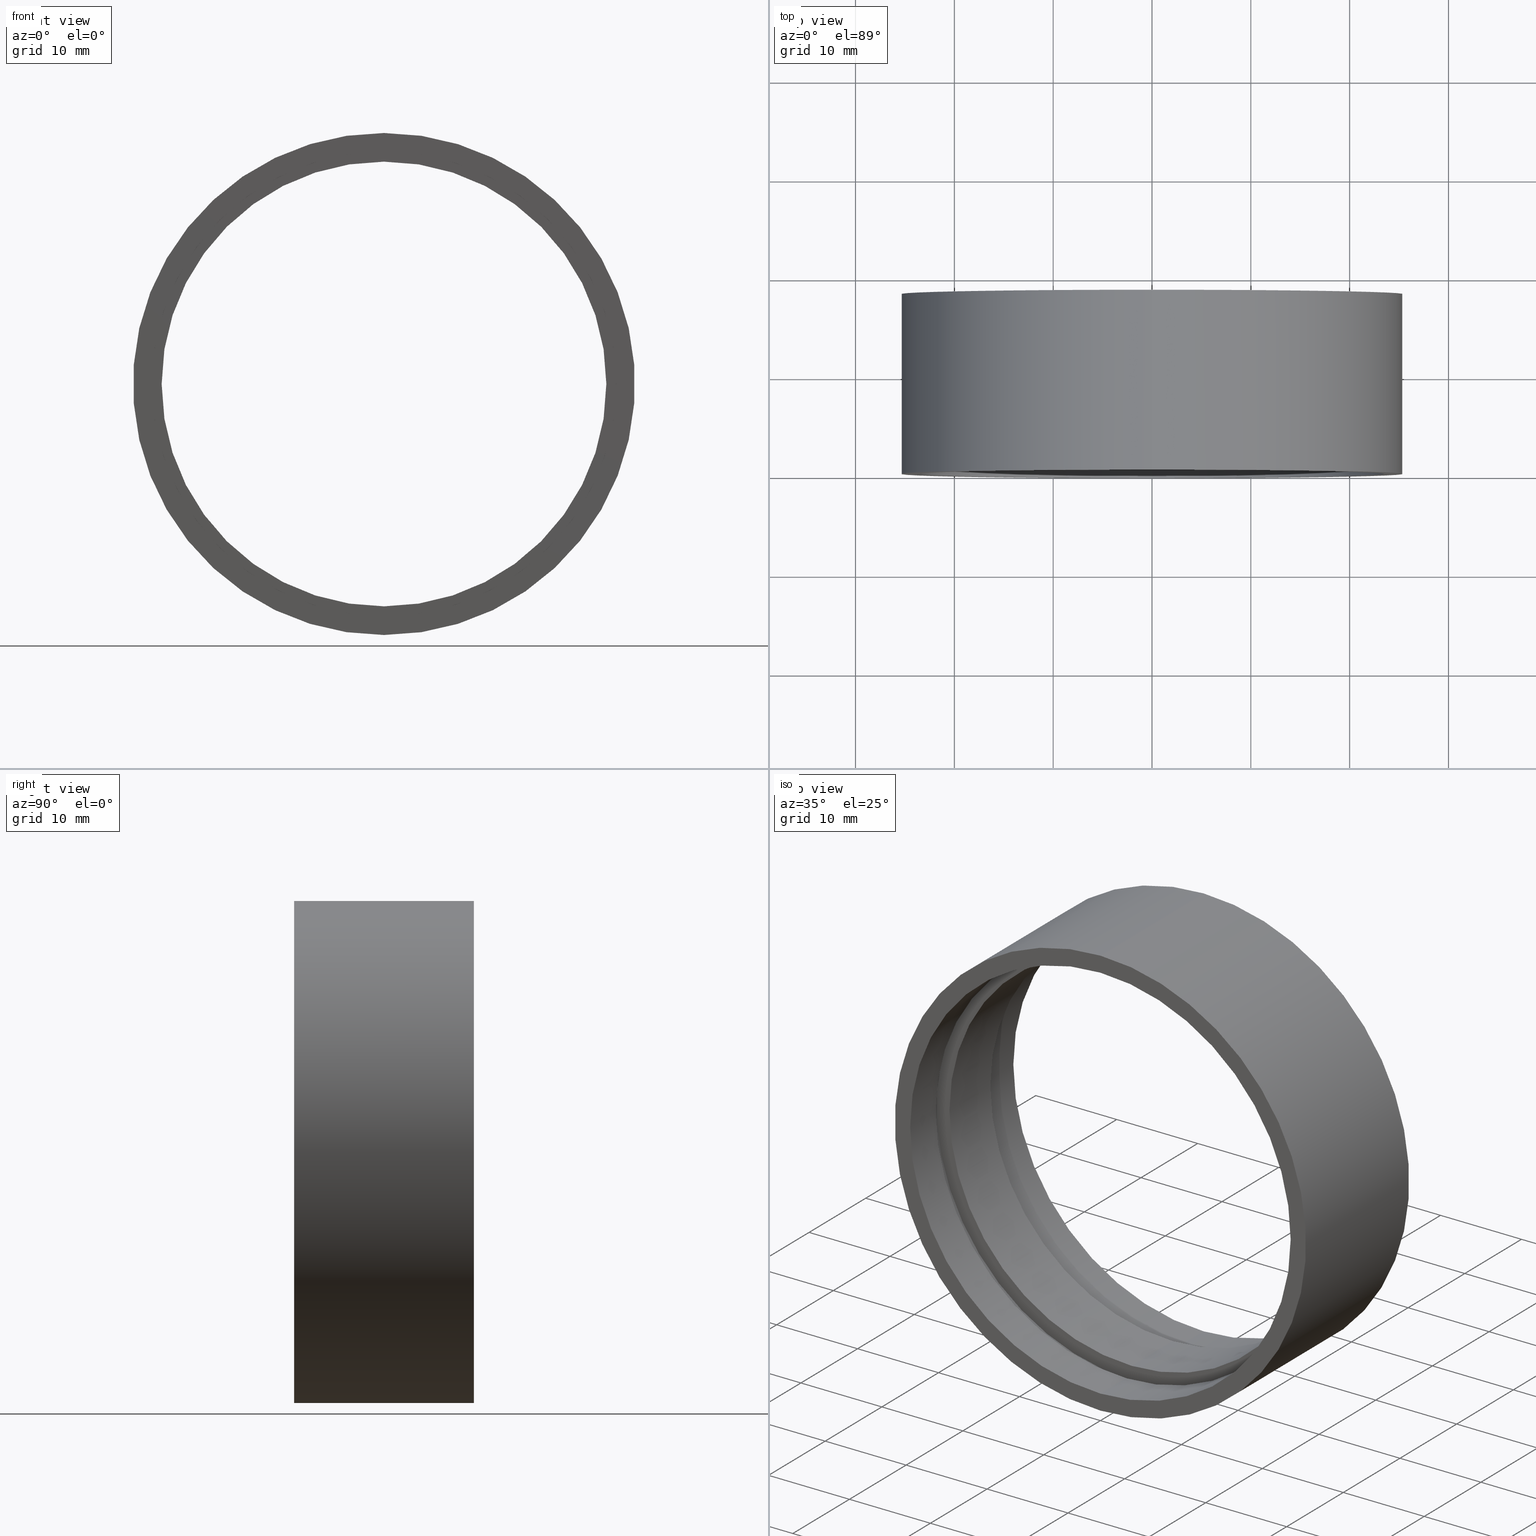
[diagram: canonical four-view strip — front | top / right | iso, engineering-drawing reading convention]
A machine part, canonical four-view strip (front | top / right | iso — engineering-drawing reading convention). The complete STEP part file that produces these views, byte-faithful:
ISO-10303-21;
HEADER;
FILE_DESCRIPTION (( 'STEP AP214' ),
    '1' );
FILE_NAME ('503021.STEP',
    '2019-09-06T02:09:03',
    ( '' ),
    ( '' ),
    'SwSTEP 2.0',
    'SolidWorks 2016',
    '' );
FILE_SCHEMA (( 'AUTOMOTIVE_DESIGN' ));
ENDSEC;

DATA;
#1 = EDGE_LOOP ( 'NONE', ( #368, #516, #393, #479 ) ) ;
#2 = FACE_OUTER_BOUND ( 'NONE', #542, .T. ) ;
#3 = FACE_OUTER_BOUND ( 'NONE', #530, .T. ) ;
#4 = ORIENTED_EDGE ( 'NONE', *, *, #426, .F. ) ;
#5 = VERTEX_POINT ( 'NONE', #578 ) ;
#6 = EDGE_CURVE ( 'NONE', #151, #606, #517, .T. ) ;
#7 = DIRECTION ( 'NONE',  ( 0.0000000000000000000, 0.0000000000000000000, 1.000000000000000000 ) ) ;
#8 = CYLINDRICAL_SURFACE ( 'NONE', #192, 22.50000000000001800 ) ;
#9 = CYLINDRICAL_SURFACE ( 'NONE', #438, 23.50000000000002100 ) ;
#10 = APPLICATION_PROTOCOL_DEFINITION ( 'draft international standard', 'automotive_design', 1998, #487 ) ;
#11 = DIRECTION ( 'NONE',  ( 0.0000000000000000000, -1.000000000000000000, 0.0000000000000000000 ) ) ;
#12 = VERTEX_POINT ( 'NONE', #53 ) ;
#13 = VERTEX_POINT ( 'NONE', #395 ) ;
#14 =( NAMED_UNIT ( * ) PLANE_ANGLE_UNIT ( ) SI_UNIT ( $, .RADIAN. ) );
#15 = CARTESIAN_POINT ( 'NONE',  ( 0.0000000000000000000, 161.3761669434274500, 0.0000000000000000000 ) ) ;
#16 = AXIS2_PLACEMENT_3D ( 'NONE', #26, #493, #316 ) ;
#17 = FILL_AREA_STYLE_COLOUR ( '', #412 ) ;
#18 = CARTESIAN_POINT ( 'NONE',  ( 3.110602869834279600E-015, 18.19999999999996700, -25.40000000000002300 ) ) ;
#19 = ORIENTED_EDGE ( 'NONE', *, *, #149, .F. ) ;
#20 = COLOUR_RGB ( '',1.000000000000000000, 1.000000000000000000, 1.000000000000000000 ) ;
#21 = MECHANICAL_DESIGN_GEOMETRIC_PRESENTATION_REPRESENTATION (  '', ( #607 ), #52 ) ;
#22 =( LENGTH_UNIT ( ) NAMED_UNIT ( * ) SI_UNIT ( .MILLI., .METRE. ) );
#23 = DIRECTION ( 'NONE',  ( 0.0000000000000000000, 0.0000000000000000000, 1.000000000000000000 ) ) ;
#24 = DIRECTION ( 'NONE',  ( -0.0000000000000000000, 1.000000000000000000, -0.0000000000000000000 ) ) ;
#25 = EDGE_LOOP ( 'NONE', ( #536, #164, #471, #154 ) ) ;
#26 = CARTESIAN_POINT ( 'NONE',  ( 0.0000000000000000000, 161.3761669434274500, 0.0000000000000000000 ) ) ;
#27 = DIRECTION ( 'NONE',  ( -0.0000000000000000000, 1.000000000000000000, 0.0000000000000000000 ) ) ;
#28 = APPLICATION_CONTEXT ( 'automotive_design' ) ;
#29 = CARTESIAN_POINT ( 'NONE',  ( 0.0000000000000000000, 4.499999999999976000, 24.10000000000001900 ) ) ;
#30 = EDGE_CURVE ( 'NONE', #198, #12, #282, .T. ) ;
#31 = DIRECTION ( 'NONE',  ( -0.0000000000000000000, 1.000000000000000000, -0.0000000000000000000 ) ) ;
#32 = AXIS2_PLACEMENT_3D ( 'NONE', #126, #176, #69 ) ;
#33 = ORIENTED_EDGE ( 'NONE', *, *, #302, .T. ) ;
#34 = ORIENTED_EDGE ( 'NONE', *, *, #426, .T. ) ;
#35 = EDGE_LOOP ( 'NONE', ( #127, #329, #246, #582 ) ) ;
#36 = SURFACE_STYLE_FILL_AREA ( #64 ) ;
#37 = VECTOR ( 'NONE', #422, 1000.000000000000000 ) ;
#38 = VECTOR ( 'NONE', #504, 1000.000000000000000 ) ;
#39 = ADVANCED_FACE ( 'NONE', ( #220, #2 ), #106, .F. ) ;
#40 = CARTESIAN_POINT ( 'NONE',  ( 0.0000000000000000000, 161.3761669434274500, 0.0000000000000000000 ) ) ;
#41 = AXIS2_PLACEMENT_3D ( 'NONE', #451, #62, #67 ) ;
#42 = ADVANCED_FACE ( 'NONE', ( #170 ), #296, .T. ) ;
#43 = FILL_AREA_STYLE_COLOUR ( '', #20 ) ;
#44 = VECTOR ( 'NONE', #480, 1000.000000000000000 ) ;
#45 = EDGE_CURVE ( 'NONE', #153, #569, #543, .T. ) ;
#46 = CARTESIAN_POINT ( 'NONE',  ( 2.877919977996282700E-015, -2.775557561562891400E-014, -23.50000000000002100 ) ) ;
#47 = EDGE_LOOP ( 'NONE', ( #169, #466, #472, #99 ) ) ;
#48 = EDGE_LOOP ( 'NONE', ( #181, #96 ) ) ;
#49 = COLOUR_RGB ( '',1.000000000000000000, 1.000000000000000000, 1.000000000000000000 ) ;
#50 = AXIS2_PLACEMENT_3D ( 'NONE', #325, #27, #369 ) ;
#51 = EDGE_LOOP ( 'NONE', ( #341, #257, #60, #292 ) ) ;
#52 =( GEOMETRIC_REPRESENTATION_CONTEXT ( 3 ) GLOBAL_UNCERTAINTY_ASSIGNED_CONTEXT ( ( #299 ) ) GLOBAL_UNIT_ASSIGNED_CONTEXT ( ( #603, #502, #326 ) ) REPRESENTATION_CONTEXT ( 'NONE', 'WORKASPACE' ) );
#53 = CARTESIAN_POINT ( 'NONE',  ( 0.0000000000000000000, 18.19999999999996700, 23.50000000000002100 ) ) ;
#54 = AXIS2_PLACEMENT_3D ( 'NONE', #40, #380, #389 ) ;
#55 = EDGE_LOOP ( 'NONE', ( #105, #307 ) ) ;
#56 = UNCERTAINTY_MEASURE_WITH_UNIT (LENGTH_MEASURE( 1.000000000000000100E-005 ), #496, 'distance_accuracy_value', 'NONE');
#57 = CARTESIAN_POINT ( 'NONE',  ( 0.0000000000000000000, 161.3761669434274500, 23.50000000000002100 ) ) ;
#58 = FACE_BOUND ( 'NONE', #213, .T. ) ;
#59 = VECTOR ( 'NONE', #217, 1000.000000000000000 ) ;
#60 = ORIENTED_EDGE ( 'NONE', *, *, #568, .T. ) ;
#61 = EDGE_CURVE ( 'NONE', #465, #135, #593, .T. ) ;
#62 = DIRECTION ( 'NONE',  ( -0.0000000000000000000, 1.000000000000000000, -0.0000000000000000000 ) ) ;
#63 = MECHANICAL_DESIGN_GEOMETRIC_PRESENTATION_REPRESENTATION (  '', ( #118 ), #233 ) ;
#64 = FILL_AREA_STYLE ('',( #585 ) ) ;
#65 = EDGE_LOOP ( 'NONE', ( #227, #81, #441, #411 ) ) ;
#66 = DIRECTION ( 'NONE',  ( -0.0000000000000000000, 1.000000000000000000, -0.0000000000000000000 ) ) ;
#67 = DIRECTION ( 'NONE',  ( 0.0000000000000000000, 0.0000000000000000000, 1.000000000000000000 ) ) ;
#68 = CIRCLE ( 'NONE', #209, 23.50000000000002100 ) ;
#69 = DIRECTION ( 'NONE',  ( 0.0000000000000000000, 0.0000000000000000000, 1.000000000000000000 ) ) ;
#70 = CARTESIAN_POINT ( 'NONE',  ( 0.0000000000000000000, 4.499999999999976000, 0.0000000000000000000 ) ) ;
#71 = DIRECTION ( 'NONE',  ( 0.0000000000000000000, 0.0000000000000000000, 1.000000000000000000 ) ) ;
#72 = FACE_OUTER_BOUND ( 'NONE', #452, .T. ) ;
#73 = PRESENTATION_STYLE_ASSIGNMENT (( #97 ) ) ;
#74 = AXIS2_PLACEMENT_3D ( 'NONE', #535, #587, #355 ) ;
#75 = CARTESIAN_POINT ( 'NONE',  ( 0.0000000000000000000, 161.3761669434274500, 0.0000000000000000000 ) ) ;
#76 = CARTESIAN_POINT ( 'NONE',  ( 2.877919977996282700E-015, 161.3761669434274500, -23.50000000000002100 ) ) ;
#77 = FILL_AREA_STYLE_COLOUR ( '', #234 ) ;
#78 = ORIENTED_EDGE ( 'NONE', *, *, #240, .T. ) ;
#79 = ORIENTED_EDGE ( 'NONE', *, *, #45, .T. ) ;
#80 = SURFACE_STYLE_USAGE ( .BOTH. , #600 ) ;
#81 = ORIENTED_EDGE ( 'NONE', *, *, #280, .F. ) ;
#82 = LINE ( 'NONE', #489, #579 ) ;
#83 = CARTESIAN_POINT ( 'NONE',  ( 0.0000000000000000000, 161.3761669434274500, 25.40000000000001600 ) ) ;
#84 = CARTESIAN_POINT ( 'NONE',  ( 0.0000000000000000000, 4.499999999999976000, 0.0000000000000000000 ) ) ;
#85 = CARTESIAN_POINT ( 'NONE',  ( 0.0000000000000000000, 5.499999999999976900, 0.0000000000000000000 ) ) ;
#86 = ADVANCED_FACE ( 'NONE', ( #72, #572 ), #358, .F. ) ;
#87 = PRESENTATION_STYLE_ASSIGNMENT (( #468 ) ) ;
#88 = AXIS2_PLACEMENT_3D ( 'NONE', #179, #556, #601 ) ;
#89 = STYLED_ITEM ( 'NONE', ( #362 ), #140 ) ;
#90 = ADVANCED_FACE ( 'NONE', ( #207 ), #430, .T. ) ;
#91 = AXIS2_PLACEMENT_3D ( 'NONE', #599, #523, #381 ) ;
#92 = CIRCLE ( 'NONE', #158, 22.50000000000001800 ) ;
#93 = FACE_OUTER_BOUND ( 'NONE', #348, .T. ) ;
#94 = ADVANCED_FACE ( 'NONE', ( #235, #156 ), #447, .F. ) ;
#95 = FILL_AREA_STYLE ('',( #43 ) ) ;
#96 = ORIENTED_EDGE ( 'NONE', *, *, #304, .F. ) ;
#97 = SURFACE_STYLE_USAGE ( .BOTH. , #146 ) ;
#98 = UNCERTAINTY_MEASURE_WITH_UNIT (LENGTH_MEASURE( 1.000000000000000100E-005 ), #180, 'distance_accuracy_value', 'NONE');
#99 = ORIENTED_EDGE ( 'NONE', *, *, #61, .T. ) ;
#100 = CARTESIAN_POINT ( 'NONE',  ( 0.0000000000000000000, 161.3761669434274500, 0.0000000000000000000 ) ) ;
#101 = FACE_OUTER_BOUND ( 'NONE', #619, .T. ) ;
#102 = AXIS2_PLACEMENT_3D ( 'NONE', #524, #141, #288 ) ;
#103 =( NAMED_UNIT ( * ) PLANE_ANGLE_UNIT ( ) SI_UNIT ( $, .RADIAN. ) );
#104 = PRODUCT ( '503021', '503021', '', ( #446 ) ) ;
#105 = ORIENTED_EDGE ( 'NONE', *, *, #280, .T. ) ;
#106 = PLANE ( 'NONE',  #527 ) ;
#107 = VECTOR ( 'NONE', #375, 1000.000000000000000 ) ;
#108 = COLOUR_RGB ( '',1.000000000000000000, 1.000000000000000000, 1.000000000000000000 ) ;
#109 = EDGE_CURVE ( 'NONE', #153, #5, #82, .T. ) ;
#110 = EDGE_LOOP ( 'NONE', ( #131, #291 ) ) ;
#111 = CARTESIAN_POINT ( 'NONE',  ( 23.50000000000002100, 18.19999999999998200, 0.0000000000000000000 ) ) ;
#112 = EDGE_CURVE ( 'NONE', #13, #313, #345, .T. ) ;
#113 = CARTESIAN_POINT ( 'NONE',  ( 0.0000000000000000000, 4.499999999999976000, 0.0000000000000000000 ) ) ;
#114 = CARTESIAN_POINT ( 'NONE',  ( 0.0000000000000000000, 13.69999999999999000, 0.0000000000000000000 ) ) ;
#115 = DIRECTION ( 'NONE',  ( 0.0000000000000000000, 0.0000000000000000000, 1.000000000000000000 ) ) ;
#116 = DIRECTION ( 'NONE',  ( -0.0000000000000000000, 1.000000000000000000, -0.0000000000000000000 ) ) ;
#117 = CARTESIAN_POINT ( 'NONE',  ( 23.50000000000002100, 4.499999999999984900, 0.0000000000000000000 ) ) ;
#118 = STYLED_ITEM ( 'NONE', ( #390 ), #427 ) ;
#119 = DIRECTION ( 'NONE',  ( 0.0000000000000000000, 0.0000000000000000000, 1.000000000000000000 ) ) ;
#120 = AXIS2_PLACEMENT_3D ( 'NONE', #219, #276, #361 ) ;
#121 = CARTESIAN_POINT ( 'NONE',  ( 0.0000000000000000000, 161.3761669434274500, 0.0000000000000000000 ) ) ;
#122 = AXIS2_PLACEMENT_3D ( 'NONE', #342, #435, #526 ) ;
#123 = DIRECTION ( 'NONE',  ( 0.0000000000000000000, 0.0000000000000000000, 1.000000000000000000 ) ) ;
#124 = LINE ( 'NONE', #76, #222 ) ;
#125 = UNCERTAINTY_MEASURE_WITH_UNIT (LENGTH_MEASURE( 1.000000000000000100E-005 ), #266, 'distance_accuracy_value', 'NONE');
#126 = CARTESIAN_POINT ( 'NONE',  ( 0.0000000000000000000, 18.19999999999996700, 0.0000000000000000000 ) ) ;
#127 = ORIENTED_EDGE ( 'NONE', *, *, #270, .F. ) ;
#128 = CARTESIAN_POINT ( 'NONE',  ( 2.877919977996282700E-015, 18.19999999999996700, -23.50000000000002100 ) ) ;
#129 = DIRECTION ( 'NONE',  ( -0.0000000000000000000, 1.000000000000000000, -0.0000000000000000000 ) ) ;
#130 = SURFACE_SIDE_STYLE ('',( #172 ) ) ;
#131 = ORIENTED_EDGE ( 'NONE', *, *, #474, .F. ) ;
#132 = EDGE_CURVE ( 'NONE', #425, #460, #417, .T. ) ;
#133 = DIRECTION ( 'NONE',  ( -0.0000000000000000000, 1.000000000000000000, -0.0000000000000000000 ) ) ;
#134 = AXIS2_PLACEMENT_3D ( 'NONE', #592, #314, #317 ) ;
#135 = VERTEX_POINT ( 'NONE', #548 ) ;
#136 = ADVANCED_FACE ( 'NONE', ( #58, #461 ), #254, .F. ) ;
#137 = PRODUCT_DEFINITION_CONTEXT ( 'detailed design', #487, 'design' ) ;
#138 = DIRECTION ( 'NONE',  ( 0.0000000000000000000, 0.0000000000000000000, 1.000000000000000000 ) ) ;
#139 = DIRECTION ( 'NONE',  ( -0.0000000000000000000, 1.000000000000000000, -0.0000000000000000000 ) ) ;
#140 = ADVANCED_FACE ( 'NONE', ( #383 ), #453, .F. ) ;
#141 = DIRECTION ( 'NONE',  ( -0.0000000000000000000, 1.000000000000000000, -0.0000000000000000000 ) ) ;
#142 = CIRCLE ( 'NONE', #157, 24.10000000000003700 ) ;
#143 = ORIENTED_EDGE ( 'NONE', *, *, #109, .T. ) ;
#144 = ADVANCED_FACE ( 'NONE', ( #199 ), #552, .F. ) ;
#145 = EDGE_CURVE ( 'NONE', #569, #184, #610, .T. ) ;
#146 = SURFACE_SIDE_STYLE ('',( #301 ) ) ;
#147 = CIRCLE ( 'NONE', #91, 24.10000000000001900 ) ;
#148 = CIRCLE ( 'NONE', #134, 25.40000000000001300 ) ;
#149 = EDGE_CURVE ( 'NONE', #497, #359, #349, .T. ) ;
#150 = CYLINDRICAL_SURFACE ( 'NONE', #289, 23.50000000000002100 ) ;
#151 = VERTEX_POINT ( 'NONE', #29 ) ;
#152 =( NAMED_UNIT ( * ) SI_UNIT ( $, .STERADIAN. ) SOLID_ANGLE_UNIT ( ) );
#153 = VERTEX_POINT ( 'NONE', #550 ) ;
#154 = ORIENTED_EDGE ( 'NONE', *, *, #482, .T. ) ;
#155 = VERTEX_POINT ( 'NONE', #229 ) ;
#156 = FACE_BOUND ( 'NONE', #387, .T. ) ;
#157 = AXIS2_PLACEMENT_3D ( 'NONE', #615, #268, #594 ) ;
#158 = AXIS2_PLACEMENT_3D ( 'NONE', #177, #561, #551 ) ;
#159 = CIRCLE ( 'NONE', #577, 25.40000000000001300 ) ;
#160 = FACE_OUTER_BOUND ( 'NONE', #511, .T. ) ;
#161 = AXIS2_PLACEMENT_3D ( 'NONE', #212, #162, #306 ) ;
#162 = DIRECTION ( 'NONE',  ( -0.0000000000000000000, 1.000000000000000000, -0.0000000000000000000 ) ) ;
#163 = ORIENTED_EDGE ( 'NONE', *, *, #373, .F. ) ;
#164 = ORIENTED_EDGE ( 'NONE', *, *, #244, .F. ) ;
#165 = AXIS2_PLACEMENT_3D ( 'NONE', #210, #24, #71 ) ;
#166 = CARTESIAN_POINT ( 'NONE',  ( 0.0000000000000000000, 5.499999999999976900, 22.50000000000001800 ) ) ;
#167 = CARTESIAN_POINT ( 'NONE',  ( 3.110602869834278800E-015, 161.3761669434274500, -25.40000000000001600 ) ) ;
#168 = DIRECTION ( 'NONE',  ( -0.0000000000000000000, 1.000000000000000000, -0.0000000000000000000 ) ) ;
#169 = ORIENTED_EDGE ( 'NONE', *, *, #512, .F. ) ;
#170 = FACE_OUTER_BOUND ( 'NONE', #1, .T. ) ;
#171 = DIRECTION ( 'NONE',  ( 0.0000000000000000000, 0.0000000000000000000, 1.000000000000000000 ) ) ;
#172 = SURFACE_STYLE_FILL_AREA ( #420 ) ;
#173 = SHAPE_DEFINITION_REPRESENTATION ( #265, #522 ) ;
#174 = SURFACE_SIDE_STYLE ('',( #189 ) ) ;
#175 =( GEOMETRIC_REPRESENTATION_CONTEXT ( 3 ) GLOBAL_UNCERTAINTY_ASSIGNED_CONTEXT ( ( #98 ) ) GLOBAL_UNIT_ASSIGNED_CONTEXT ( ( #180, #273, #602 ) ) REPRESENTATION_CONTEXT ( 'NONE', 'WORKASPACE' ) );
#176 = DIRECTION ( 'NONE',  ( -0.0000000000000000000, 1.000000000000000000, -0.0000000000000000000 ) ) ;
#177 = CARTESIAN_POINT ( 'NONE',  ( 0.0000000000000000000, 5.499999999999976900, 0.0000000000000000000 ) ) ;
#178 =( LENGTH_UNIT ( ) NAMED_UNIT ( * ) SI_UNIT ( .MILLI., .METRE. ) );
#179 = CARTESIAN_POINT ( 'NONE',  ( 22.50000000000001800, 12.69999999999997600, 0.0000000000000000000 ) ) ;
#180 =( LENGTH_UNIT ( ) NAMED_UNIT ( * ) SI_UNIT ( .MILLI., .METRE. ) );
#181 = ORIENTED_EDGE ( 'NONE', *, *, #557, .F. ) ;
#182 = CARTESIAN_POINT ( 'NONE',  ( 0.0000000000000000000, 13.69999999999999000, 23.50000000000002100 ) ) ;
#183 = PRODUCT_DEFINITION_FORMATION_WITH_SPECIFIED_SOURCE ( '�κ�', '', #104, .NOT_KNOWN. ) ;
#184 = VERTEX_POINT ( 'NONE', #558 ) ;
#185 = FACE_OUTER_BOUND ( 'NONE', #25, .T. ) ;
#186 = CIRCLE ( 'NONE', #122, 25.40000000000002000 ) ;
#187 = CARTESIAN_POINT ( 'NONE',  ( 0.0000000000000000000, 4.499999999999976000, 23.50000000000002100 ) ) ;
#188 = VERTEX_POINT ( 'NONE', #464 ) ;
#189 = SURFACE_STYLE_FILL_AREA ( #549 ) ;
#190 = AXIS2_PLACEMENT_3D ( 'NONE', #500, #116, #413 ) ;
#191 = ADVANCED_FACE ( 'NONE', ( #185 ), #8, .F. ) ;
#192 = AXIS2_PLACEMENT_3D ( 'NONE', #75, #31, #424 ) ;
#193 = AXIS2_PLACEMENT_3D ( 'NONE', #194, #139, #378 ) ;
#194 = CARTESIAN_POINT ( 'NONE',  ( 0.0000000000000000000, 13.69999999999999000, 0.0000000000000000000 ) ) ;
#195 = VECTOR ( 'NONE', #539, 1000.000000000000000 ) ;
#196 = ORIENTED_EDGE ( 'NONE', *, *, #622, .F. ) ;
#197 = EDGE_CURVE ( 'NONE', #460, #425, #230, .T. ) ;
#198 = VERTEX_POINT ( 'NONE', #182 ) ;
#199 = FACE_OUTER_BOUND ( 'NONE', #429, .T. ) ;
#200 = LINE ( 'NONE', #259, #59 ) ;
#201 = AXIS2_PLACEMENT_3D ( 'NONE', #113, #449, #119 ) ;
#202 = ORIENTED_EDGE ( 'NONE', *, *, #467, .F. ) ;
#203 = ORIENTED_EDGE ( 'NONE', *, *, #244, .T. ) ;
#204 = DIRECTION ( 'NONE',  ( 0.0000000000000000000, 0.0000000000000000000, 1.000000000000000000 ) ) ;
#205 = DIRECTION ( 'NONE',  ( 1.000000000000000000, 0.0000000000000000000, 0.0000000000000000000 ) ) ;
#206 = ORIENTED_EDGE ( 'NONE', *, *, #467, .T. ) ;
#207 = FACE_OUTER_BOUND ( 'NONE', #264, .T. ) ;
#208 = CARTESIAN_POINT ( 'NONE',  ( 2.877919977996282700E-015, 13.69999999999999000, -23.50000000000002100 ) ) ;
#209 = AXIS2_PLACEMENT_3D ( 'NONE', #328, #508, #377 ) ;
#210 = CARTESIAN_POINT ( 'NONE',  ( 0.0000000000000000000, 13.69999999999999000, 0.0000000000000000000 ) ) ;
#211 =( NAMED_UNIT ( * ) SI_UNIT ( $, .STERADIAN. ) SOLID_ANGLE_UNIT ( ) );
#212 = CARTESIAN_POINT ( 'NONE',  ( 0.0000000000000000000, 161.3761669434274500, 0.0000000000000000000 ) ) ;
#213 = EDGE_LOOP ( 'NONE', ( #521, #476 ) ) ;
#214 = PRESENTATION_LAYER_ASSIGNMENT (  '', '', ( #258 ) ) ;
#215 = DIRECTION ( 'NONE',  ( 0.0000000000000000000, 0.0000000000000000000, 1.000000000000000000 ) ) ;
#216 = PRESENTATION_LAYER_ASSIGNMENT (  '', '', ( #89 ) ) ;
#217 = DIRECTION ( 'NONE',  ( -0.0000000000000000000, 1.000000000000000000, -0.0000000000000000000 ) ) ;
#218 = AXIS2_PLACEMENT_3D ( 'NONE', #85, #431, #138 ) ;
#219 = CARTESIAN_POINT ( 'NONE',  ( 0.0000000000000000000, -2.775557561562891400E-014, 0.0000000000000000000 ) ) ;
#220 = FACE_BOUND ( 'NONE', #110, .T. ) ;
#221 = CARTESIAN_POINT ( 'NONE',  ( 0.0000000000000000000, -2.775557561562891400E-014, 23.50000000000002100 ) ) ;
#222 = VECTOR ( 'NONE', #418, 1000.000000000000000 ) ;
#223 = FILL_AREA_STYLE_COLOUR ( '', #394 ) ;
#224 = DIRECTION ( 'NONE',  ( 0.0000000000000000000, 0.0000000000000000000, 1.000000000000000000 ) ) ;
#225 =( NAMED_UNIT ( * ) PLANE_ANGLE_UNIT ( ) SI_UNIT ( $, .RADIAN. ) );
#226 = CARTESIAN_POINT ( 'NONE',  ( 0.0000000000000000000, 161.3761669434274500, 0.0000000000000000000 ) ) ;
#227 = ORIENTED_EDGE ( 'NONE', *, *, #343, .F. ) ;
#228 = ORIENTED_EDGE ( 'NONE', *, *, #373, .T. ) ;
#229 = CARTESIAN_POINT ( 'NONE',  ( 3.110602869834278800E-015, -2.775557561562891400E-014, -25.40000000000001300 ) ) ;
#230 = CIRCLE ( 'NONE', #120, 23.50000000000002100 ) ;
#231 = CARTESIAN_POINT ( 'NONE',  ( 0.0000000000000000000, 5.499999999999976900, 24.10000000000001900 ) ) ;
#232 = DIRECTION ( 'NONE',  ( 0.0000000000000000000, 0.0000000000000000000, 1.000000000000000000 ) ) ;
#233 =( GEOMETRIC_REPRESENTATION_CONTEXT ( 3 ) GLOBAL_UNCERTAINTY_ASSIGNED_CONTEXT ( ( #608 ) ) GLOBAL_UNIT_ASSIGNED_CONTEXT ( ( #290, #436, #238 ) ) REPRESENTATION_CONTEXT ( 'NONE', 'WORKASPACE' ) );
#234 = COLOUR_RGB ( '',1.000000000000000000, 1.000000000000000000, 1.000000000000000000 ) ;
#235 = FACE_OUTER_BOUND ( 'NONE', #250, .T. ) ;
#236 = PRESENTATION_STYLE_ASSIGNMENT (( #319 ) ) ;
#237 = DIRECTION ( 'NONE',  ( 0.0000000000000000000, 0.0000000000000000000, 1.000000000000000000 ) ) ;
#238 =( NAMED_UNIT ( * ) SI_UNIT ( $, .STERADIAN. ) SOLID_ANGLE_UNIT ( ) );
#239 = ADVANCED_FACE ( 'NONE', ( #101 ), #503, .F. ) ;
#240 = EDGE_CURVE ( 'NONE', #353, #155, #159, .T. ) ;
#241 = SURFACE_SIDE_STYLE ('',( #507 ) ) ;
#242 =( LENGTH_UNIT ( ) NAMED_UNIT ( * ) SI_UNIT ( .MILLI., .METRE. ) );
#243 = VERTEX_POINT ( 'NONE', #462 ) ;
#244 = EDGE_CURVE ( 'NONE', #569, #153, #92, .T. ) ;
#245 = PRESENTATION_LAYER_ASSIGNMENT (  '', '', ( #428 ) ) ;
#246 = ORIENTED_EDGE ( 'NONE', *, *, #304, .T. ) ;
#247 = CYLINDRICAL_SURFACE ( 'NONE', #574, 23.50000000000002100 ) ;
#248 = PRESENTATION_LAYER_ASSIGNMENT (  '', '', ( #607 ) ) ;
#249 = PRESENTATION_LAYER_ASSIGNMENT (  '', '', ( #518 ) ) ;
#250 = EDGE_LOOP ( 'NONE', ( #562, #440 ) ) ;
#251 = UNCERTAINTY_MEASURE_WITH_UNIT (LENGTH_MEASURE( 1.000000000000000100E-005 ), #178, 'distance_accuracy_value', 'NONE');
#252 = UNCERTAINTY_MEASURE_WITH_UNIT (LENGTH_MEASURE( 1.000000000000000100E-005 ), #455, 'distance_accuracy_value', 'NONE');
#253 = ORIENTED_EDGE ( 'NONE', *, *, #145, .F. ) ;
#254 = PLANE ( 'NONE',  #285 ) ;
#255 = AXIS2_PLACEMENT_3D ( 'NONE', #310, #256, #115 ) ;
#256 = DIRECTION ( 'NONE',  ( -0.0000000000000000000, 1.000000000000000000, 0.0000000000000000000 ) ) ;
#257 = ORIENTED_EDGE ( 'NONE', *, *, #403, .T. ) ;
#258 = STYLED_ITEM ( 'NONE', ( #236 ), #520 ) ;
#259 = CARTESIAN_POINT ( 'NONE',  ( 2.877919977996282700E-015, 161.3761669434274500, -23.50000000000002100 ) ) ;
#260 = EDGE_LOOP ( 'NONE', ( #506, #196, #278, #352 ) ) ;
#261 = CARTESIAN_POINT ( 'NONE',  ( 0.0000000000000000000, 161.3761669434274500, 0.0000000000000000000 ) ) ;
#262 = CARTESIAN_POINT ( 'NONE',  ( 0.0000000000000000000, 161.3761669434274500, 0.0000000000000000000 ) ) ;
#263 = DIRECTION ( 'NONE',  ( 0.0000000000000000000, -0.0000000000000000000, -1.000000000000000000 ) ) ;
#264 = EDGE_LOOP ( 'NONE', ( #78, #581, #19, #529 ) ) ;
#265 = PRODUCT_DEFINITION_SHAPE ( 'NONE', 'NONE',  #481 ) ;
#266 =( LENGTH_UNIT ( ) NAMED_UNIT ( * ) SI_UNIT ( .MILLI., .METRE. ) );
#267 = FACE_OUTER_BOUND ( 'NONE', #65, .T. ) ;
#268 = DIRECTION ( 'NONE',  ( -0.0000000000000000000, 1.000000000000000000, -0.0000000000000000000 ) ) ;
#269 = DIRECTION ( 'NONE',  ( 0.0000000000000000000, 0.0000000000000000000, 1.000000000000000000 ) ) ;
#270 = EDGE_CURVE ( 'NONE', #243, #151, #398, .T. ) ;
#271 = CARTESIAN_POINT ( 'NONE',  ( 0.0000000000000000000, 161.3761669434274500, 23.50000000000002100 ) ) ;
#272 = CIRCLE ( 'NONE', #193, 23.50000000000002100 ) ;
#273 =( NAMED_UNIT ( * ) PLANE_ANGLE_UNIT ( ) SI_UNIT ( $, .RADIAN. ) );
#274 = FILL_AREA_STYLE_COLOUR ( '', #49 ) ;
#275 = DIRECTION ( 'NONE',  ( 0.0000000000000000000, 0.0000000000000000000, 1.000000000000000000 ) ) ;
#276 = DIRECTION ( 'NONE',  ( -0.0000000000000000000, 1.000000000000000000, -0.0000000000000000000 ) ) ;
#277 = ORIENTED_EDGE ( 'NONE', *, *, #338, .F. ) ;
#278 = ORIENTED_EDGE ( 'NONE', *, *, #30, .T. ) ;
#279 = DIRECTION ( 'NONE',  ( 0.0000000000000000000, 0.0000000000000000000, 1.000000000000000000 ) ) ;
#280 = EDGE_CURVE ( 'NONE', #151, #243, #147, .T. ) ;
#281 = ORIENTED_EDGE ( 'NONE', *, *, #469, .F. ) ;
#282 = LINE ( 'NONE', #57, #318 ) ;
#283 = LINE ( 'NONE', #287, #596 ) ;
#284 = AXIS2_PLACEMENT_3D ( 'NONE', #114, #66, #171 ) ;
#285 = AXIS2_PLACEMENT_3D ( 'NONE', #117, #11, #354 ) ;
#286 = MECHANICAL_DESIGN_GEOMETRIC_PRESENTATION_REPRESENTATION (  '', ( #518 ), #609 ) ;
#287 = CARTESIAN_POINT ( 'NONE',  ( 2.951398785945126000E-015, 161.3761669434274500, -24.10000000000003700 ) ) ;
#288 = DIRECTION ( 'NONE',  ( 0.0000000000000000000, 0.0000000000000000000, 1.000000000000000000 ) ) ;
#289 = AXIS2_PLACEMENT_3D ( 'NONE', #262, #309, #374 ) ;
#290 =( LENGTH_UNIT ( ) NAMED_UNIT ( * ) SI_UNIT ( .MILLI., .METRE. ) );
#291 = ORIENTED_EDGE ( 'NONE', *, *, #568, .F. ) ;
#292 = ORIENTED_EDGE ( 'NONE', *, *, #30, .F. ) ;
#293 = MECHANICAL_DESIGN_GEOMETRIC_PRESENTATION_REPRESENTATION (  '', ( #258 ), #331 ) ;
#294 = EDGE_CURVE ( 'NONE', #478, #198, #272, .T. ) ;
#295 = ORIENTED_EDGE ( 'NONE', *, *, #512, .T. ) ;
#296 = CYLINDRICAL_SURFACE ( 'NONE', #583, 25.40000000000001600 ) ;
#297 = CIRCLE ( 'NONE', #584, 24.10000000000001900 ) ;
#298 = CARTESIAN_POINT ( 'NONE',  ( 0.0000000000000000000, 161.3761669434274500, 24.10000000000001900 ) ) ;
#299 = UNCERTAINTY_MEASURE_WITH_UNIT (LENGTH_MEASURE( 1.000000000000000100E-005 ), #603, 'distance_accuracy_value', 'NONE');
#300 =( GEOMETRIC_REPRESENTATION_CONTEXT ( 3 ) GLOBAL_UNCERTAINTY_ASSIGNED_CONTEXT ( ( #251 ) ) GLOBAL_UNIT_ASSIGNED_CONTEXT ( ( #178, #225, #555 ) ) REPRESENTATION_CONTEXT ( 'NONE', 'WORKASPACE' ) );
#301 = SURFACE_STYLE_FILL_AREA ( #95 ) ;
#302 = EDGE_CURVE ( 'NONE', #135, #465, #525, .T. ) ;
#303 = DIRECTION ( 'NONE',  ( -0.0000000000000000000, 1.000000000000000000, -0.0000000000000000000 ) ) ;
#304 = EDGE_CURVE ( 'NONE', #188, #606, #406, .T. ) ;
#305 = SURFACE_SIDE_STYLE ('',( #434 ) ) ;
#306 = DIRECTION ( 'NONE',  ( 0.0000000000000000000, 0.0000000000000000000, 1.000000000000000000 ) ) ;
#307 = ORIENTED_EDGE ( 'NONE', *, *, #270, .T. ) ;
#308 = CIRCLE ( 'NONE', #165, 24.10000000000003700 ) ;
#309 = DIRECTION ( 'NONE',  ( -0.0000000000000000000, 1.000000000000000000, -0.0000000000000000000 ) ) ;
#310 = CARTESIAN_POINT ( 'NONE',  ( 23.50000000000002100, -1.436345924723669800E-014, 0.0000000000000000000 ) ) ;
#311 = CYLINDRICAL_SURFACE ( 'NONE', #392, 22.50000000000001800 ) ;
#312 = CARTESIAN_POINT ( 'NONE',  ( 0.0000000000000000000, 161.3761669434274500, 22.50000000000001800 ) ) ;
#313 = VERTEX_POINT ( 'NONE', #515 ) ;
#314 = DIRECTION ( 'NONE',  ( -0.0000000000000000000, 1.000000000000000000, -0.0000000000000000000 ) ) ;
#315 = AXIS2_PLACEMENT_3D ( 'NONE', #595, #505, #23 ) ;
#316 = DIRECTION ( 'NONE',  ( 0.0000000000000000000, 0.0000000000000000000, 1.000000000000000000 ) ) ;
#317 = DIRECTION ( 'NONE',  ( 0.0000000000000000000, 0.0000000000000000000, 1.000000000000000000 ) ) ;
#318 = VECTOR ( 'NONE', #624, 1000.000000000000000 ) ;
#319 = SURFACE_STYLE_USAGE ( .BOTH. , #305 ) ;
#320 = DIRECTION ( 'NONE',  ( -0.0000000000000000000, 1.000000000000000000, -0.0000000000000000000 ) ) ;
#321 = PLANE ( 'NONE',  #50 ) ;
#322 = ORIENTED_EDGE ( 'NONE', *, *, #45, .F. ) ;
#323 = CARTESIAN_POINT ( 'NONE',  ( 2.951398785945126000E-015, 13.69999999999999000, -24.10000000000003700 ) ) ;
#324 = DIRECTION ( 'NONE',  ( -0.0000000000000000000, 1.000000000000000000, -0.0000000000000000000 ) ) ;
#325 = CARTESIAN_POINT ( 'NONE',  ( 22.50000000000001800, 5.499999999999984900, 0.0000000000000000000 ) ) ;
#326 =( NAMED_UNIT ( * ) SI_UNIT ( $, .STERADIAN. ) SOLID_ANGLE_UNIT ( ) );
#327 = EDGE_CURVE ( 'NONE', #359, #497, #186, .T. ) ;
#328 = CARTESIAN_POINT ( 'NONE',  ( 0.0000000000000000000, 18.19999999999996700, 0.0000000000000000000 ) ) ;
#329 = ORIENTED_EDGE ( 'NONE', *, *, #343, .T. ) ;
#330 = VECTOR ( 'NONE', #351, 1000.000000000000000 ) ;
#331 =( GEOMETRIC_REPRESENTATION_CONTEXT ( 3 ) GLOBAL_UNCERTAINTY_ASSIGNED_CONTEXT ( ( #56 ) ) GLOBAL_UNIT_ASSIGNED_CONTEXT ( ( #496, #14, #211 ) ) REPRESENTATION_CONTEXT ( 'NONE', 'WORKASPACE' ) );
#332 = LINE ( 'NONE', #271, #38 ) ;
#333 = UNCERTAINTY_MEASURE_WITH_UNIT (LENGTH_MEASURE( 1.000000000000000100E-005 ), #242, 'distance_accuracy_value', 'NONE');
#334 = EDGE_LOOP ( 'NONE', ( #203, #79 ) ) ;
#335 = ADVANCED_FACE ( 'NONE', ( #267 ), #554, .F. ) ;
#336 = COLOUR_RGB ( '',1.000000000000000000, 1.000000000000000000, 1.000000000000000000 ) ;
#337 = CYLINDRICAL_SURFACE ( 'NONE', #16, 24.10000000000001900 ) ;
#338 = EDGE_CURVE ( 'NONE', #313, #589, #283, .T. ) ;
#339 = ADVANCED_FACE ( 'NONE', ( #565 ), #9, .F. ) ;
#340 = CLOSED_SHELL ( 'NONE', ( #427, #475, #520, #239, #566, #90, #94, #42, #39, #339, #86, #144, #388, #191, #386, #335, #136, #140 ) ) ;
#341 = ORIENTED_EDGE ( 'NONE', *, *, #294, .F. ) ;
#342 = CARTESIAN_POINT ( 'NONE',  ( 0.0000000000000000000, 18.19999999999996700, 0.0000000000000000000 ) ) ;
#343 = EDGE_CURVE ( 'NONE', #243, #188, #498, .T. ) ;
#344 = VERTEX_POINT ( 'NONE', #437 ) ;
#345 = CIRCLE ( 'NONE', #41, 24.10000000000003700 ) ;
#346 = AXIS2_PLACEMENT_3D ( 'NONE', #416, #423, #275 ) ;
#347 = PRESENTATION_STYLE_ASSIGNMENT (( #407 ) ) ;
#348 = EDGE_LOOP ( 'NONE', ( #322, #143, #34, #253 ) ) ;
#349 = CIRCLE ( 'NONE', #315, 25.40000000000002000 ) ;
#350 = MECHANICAL_DESIGN_GEOMETRIC_PRESENTATION_REPRESENTATION (  '', ( #89 ), #415 ) ;
#351 = DIRECTION ( 'NONE',  ( -0.0000000000000000000, 1.000000000000000000, -0.0000000000000000000 ) ) ;
#352 = ORIENTED_EDGE ( 'NONE', *, *, #474, .T. ) ;
#353 = VERTEX_POINT ( 'NONE', #612 ) ;
#354 = DIRECTION ( 'NONE',  ( 0.0000000000000000000, -0.0000000000000000000, -1.000000000000000000 ) ) ;
#355 = DIRECTION ( 'NONE',  ( 0.0000000000000000000, 0.0000000000000000000, 1.000000000000000000 ) ) ;
#356 = STYLED_ITEM ( 'NONE', ( #347 ), #566 ) ;
#357 = FILL_AREA_STYLE ('',( #17 ) ) ;
#358 = PLANE ( 'NONE',  #370 ) ;
#359 = VERTEX_POINT ( 'NONE', #18 ) ;
#360 =( NAMED_UNIT ( * ) PLANE_ANGLE_UNIT ( ) SI_UNIT ( $, .RADIAN. ) );
#361 = DIRECTION ( 'NONE',  ( 0.0000000000000000000, 0.0000000000000000000, 1.000000000000000000 ) ) ;
#362 = PRESENTATION_STYLE_ASSIGNMENT (( #405 ) ) ;
#363 = FACE_OUTER_BOUND ( 'NONE', #35, .T. ) ;
#364 = CARTESIAN_POINT ( 'NONE',  ( 0.0000000000000000000, 18.19999999999996700, 25.40000000000002000 ) ) ;
#365 = DIRECTION ( 'NONE',  ( -0.0000000000000000000, 1.000000000000000000, -0.0000000000000000000 ) ) ;
#366 = UNCERTAINTY_MEASURE_WITH_UNIT (LENGTH_MEASURE( 1.000000000000000100E-005 ), #22, 'distance_accuracy_value', 'NONE');
#367 = FILL_AREA_STYLE ('',( #223 ) ) ;
#368 = ORIENTED_EDGE ( 'NONE', *, *, #488, .F. ) ;
#369 = DIRECTION ( 'NONE',  ( 0.0000000000000000000, 0.0000000000000000000, 1.000000000000000000 ) ) ;
#370 = AXIS2_PLACEMENT_3D ( 'NONE', #537, #410, #459 ) ;
#371 = APPLICATION_PROTOCOL_DEFINITION ( 'draft international standard', 'automotive_design', 1998, #28 ) ;
#372 = PLANE ( 'NONE',  #88 ) ;
#373 = EDGE_CURVE ( 'NONE', #13, #344, #618, .T. ) ;
#374 = DIRECTION ( 'NONE',  ( 0.0000000000000000000, 0.0000000000000000000, 1.000000000000000000 ) ) ;
#375 = DIRECTION ( 'NONE',  ( -0.0000000000000000000, 1.000000000000000000, -0.0000000000000000000 ) ) ;
#376 = ORIENTED_EDGE ( 'NONE', *, *, #132, .T. ) ;
#377 = DIRECTION ( 'NONE',  ( 0.0000000000000000000, 0.0000000000000000000, 1.000000000000000000 ) ) ;
#378 = DIRECTION ( 'NONE',  ( 0.0000000000000000000, 0.0000000000000000000, 1.000000000000000000 ) ) ;
#379 = VECTOR ( 'NONE', #133, 1000.000000000000000 ) ;
#380 = DIRECTION ( 'NONE',  ( -0.0000000000000000000, 1.000000000000000000, -0.0000000000000000000 ) ) ;
#381 = DIRECTION ( 'NONE',  ( 0.0000000000000000000, 0.0000000000000000000, 1.000000000000000000 ) ) ;
#382 = ORIENTED_EDGE ( 'NONE', *, *, #197, .T. ) ;
#383 = FACE_OUTER_BOUND ( 'NONE', #47, .T. ) ;
#384 = CARTESIAN_POINT ( 'NONE',  ( 2.951398785945123600E-015, 161.3761669434274500, -24.10000000000001900 ) ) ;
#385 = AXIS2_PLACEMENT_3D ( 'NONE', #261, #402, #215 ) ;
#386 = ADVANCED_FACE ( 'NONE', ( #445, #443 ), #321, .F. ) ;
#387 = EDGE_LOOP ( 'NONE', ( #376, #382 ) ) ;
#388 = ADVANCED_FACE ( 'NONE', ( #533, #3 ), #372, .F. ) ;
#389 = DIRECTION ( 'NONE',  ( 0.0000000000000000000, 0.0000000000000000000, 1.000000000000000000 ) ) ;
#390 = PRESENTATION_STYLE_ASSIGNMENT (( #570 ) ) ;
#391 = ORIENTED_EDGE ( 'NONE', *, *, #327, .T. ) ;
#392 = AXIS2_PLACEMENT_3D ( 'NONE', #121, #586, #269 ) ;
#393 = ORIENTED_EDGE ( 'NONE', *, *, #597, .T. ) ;
#394 = COLOUR_RGB ( '',1.000000000000000000, 1.000000000000000000, 1.000000000000000000 ) ;
#395 = CARTESIAN_POINT ( 'NONE',  ( 0.0000000000000000000, 12.69999999999998900, 24.10000000000003700 ) ) ;
#396 = ORIENTED_EDGE ( 'NONE', *, *, #401, .T. ) ;
#397 = CARTESIAN_POINT ( 'NONE',  ( 0.0000000000000000000, 161.3761669434274500, 24.10000000000003700 ) ) ;
#398 = CIRCLE ( 'NONE', #547, 24.10000000000001900 ) ;
#399 = EDGE_CURVE ( 'NONE', #155, #353, #148, .T. ) ;
#400 = CARTESIAN_POINT ( 'NONE',  ( 0.0000000000000000000, 5.499999999999976900, 0.0000000000000000000 ) ) ;
#401 = EDGE_CURVE ( 'NONE', #344, #589, #308, .T. ) ;
#402 = DIRECTION ( 'NONE',  ( -0.0000000000000000000, 1.000000000000000000, -0.0000000000000000000 ) ) ;
#403 = EDGE_CURVE ( 'NONE', #478, #616, #124, .T. ) ;
#404 = SURFACE_STYLE_USAGE ( .BOTH. , #174 ) ;
#405 = SURFACE_STYLE_USAGE ( .BOTH. , #540 ) ;
#406 = CIRCLE ( 'NONE', #218, 24.10000000000001900 ) ;
#407 = SURFACE_STYLE_USAGE ( .BOTH. , #457 ) ;
#408 = ORIENTED_EDGE ( 'NONE', *, *, #401, .F. ) ;
#409 = DIRECTION ( 'NONE',  ( 0.0000000000000000000, 0.0000000000000000000, 1.000000000000000000 ) ) ;
#410 = DIRECTION ( 'NONE',  ( -0.0000000000000000000, 1.000000000000000000, 0.0000000000000000000 ) ) ;
#411 = ORIENTED_EDGE ( 'NONE', *, *, #557, .T. ) ;
#412 = COLOUR_RGB ( '',1.000000000000000000, 1.000000000000000000, 1.000000000000000000 ) ;
#413 = DIRECTION ( 'NONE',  ( 0.0000000000000000000, 0.0000000000000000000, 1.000000000000000000 ) ) ;
#414 = CARTESIAN_POINT ( 'NONE',  ( 0.0000000000000000000, -2.775557561562891400E-014, 0.0000000000000000000 ) ) ;
#415 =( GEOMETRIC_REPRESENTATION_CONTEXT ( 3 ) GLOBAL_UNCERTAINTY_ASSIGNED_CONTEXT ( ( #125 ) ) GLOBAL_UNIT_ASSIGNED_CONTEXT ( ( #266, #591, #494 ) ) REPRESENTATION_CONTEXT ( 'NONE', 'WORKASPACE' ) );
#416 = CARTESIAN_POINT ( 'NONE',  ( 0.0000000000000000000, 13.69999999999999000, 0.0000000000000000000 ) ) ;
#417 = CIRCLE ( 'NONE', #74, 23.50000000000002100 ) ;
#418 = DIRECTION ( 'NONE',  ( -0.0000000000000000000, 1.000000000000000000, -0.0000000000000000000 ) ) ;
#419 = CIRCLE ( 'NONE', #102, 22.50000000000001800 ) ;
#420 = FILL_AREA_STYLE ('',( #77 ) ) ;
#421 = DIRECTION ( 'NONE',  ( 0.0000000000000000000, 0.0000000000000000000, 1.000000000000000000 ) ) ;
#422 = DIRECTION ( 'NONE',  ( -0.0000000000000000000, 1.000000000000000000, -0.0000000000000000000 ) ) ;
#423 = DIRECTION ( 'NONE',  ( -0.0000000000000000000, 1.000000000000000000, -0.0000000000000000000 ) ) ;
#424 = DIRECTION ( 'NONE',  ( 0.0000000000000000000, 0.0000000000000000000, 1.000000000000000000 ) ) ;
#425 = VERTEX_POINT ( 'NONE', #221 ) ;
#426 = EDGE_CURVE ( 'NONE', #5, #184, #419, .T. ) ;
#427 = ADVANCED_FACE ( 'NONE', ( #160 ), #247, .F. ) ;
#428 = STYLED_ITEM ( 'NONE', ( #456 ), #534 ) ;
#429 = EDGE_LOOP ( 'NONE', ( #277, #432, #228, #396 ) ) ;
#430 = CYLINDRICAL_SURFACE ( 'NONE', #161, 25.40000000000001600 ) ;
#431 = DIRECTION ( 'NONE',  ( -0.0000000000000000000, 1.000000000000000000, -0.0000000000000000000 ) ) ;
#432 = ORIENTED_EDGE ( 'NONE', *, *, #112, .F. ) ;
#433 = PRESENTATION_STYLE_ASSIGNMENT (( #80 ) ) ;
#434 = SURFACE_STYLE_FILL_AREA ( #367 ) ;
#435 = DIRECTION ( 'NONE',  ( -0.0000000000000000000, 1.000000000000000000, -0.0000000000000000000 ) ) ;
#436 =( NAMED_UNIT ( * ) PLANE_ANGLE_UNIT ( ) SI_UNIT ( $, .RADIAN. ) );
#437 = CARTESIAN_POINT ( 'NONE',  ( 0.0000000000000000000, 13.69999999999999000, 24.10000000000003700 ) ) ;
#438 = AXIS2_PLACEMENT_3D ( 'NONE', #100, #613, #237 ) ;
#439 = DIRECTION ( 'NONE',  ( -0.0000000000000000000, 1.000000000000000000, -0.0000000000000000000 ) ) ;
#440 = ORIENTED_EDGE ( 'NONE', *, *, #399, .F. ) ;
#441 = ORIENTED_EDGE ( 'NONE', *, *, #6, .T. ) ;
#442 = PRESENTATION_LAYER_ASSIGNMENT (  '', '', ( #450 ) ) ;
#443 = FACE_BOUND ( 'NONE', #334, .T. ) ;
#444 = ORIENTED_EDGE ( 'NONE', *, *, #482, .F. ) ;
#445 = FACE_OUTER_BOUND ( 'NONE', #48, .T. ) ;
#446 = PRODUCT_CONTEXT ( 'NONE', #28, 'mechanical' ) ;
#447 = PLANE ( 'NONE',  #255 ) ;
#448 = EDGE_LOOP ( 'NONE', ( #444, #4 ) ) ;
#449 = DIRECTION ( 'NONE',  ( -0.0000000000000000000, 1.000000000000000000, -0.0000000000000000000 ) ) ;
#450 = STYLED_ITEM ( 'NONE', ( #87 ), #522 ) ;
#451 = CARTESIAN_POINT ( 'NONE',  ( 0.0000000000000000000, 12.69999999999998900, 0.0000000000000000000 ) ) ;
#452 = EDGE_LOOP ( 'NONE', ( #408, #281 ) ) ;
#453 = CYLINDRICAL_SURFACE ( 'NONE', #385, 23.50000000000002100 ) ;
#454 =( GEOMETRIC_REPRESENTATION_CONTEXT ( 3 ) GLOBAL_UNCERTAINTY_ASSIGNED_CONTEXT ( ( #252 ) ) GLOBAL_UNIT_ASSIGNED_CONTEXT ( ( #455, #495, #590 ) ) REPRESENTATION_CONTEXT ( 'NONE', 'WORKASPACE' ) );
#455 =( LENGTH_UNIT ( ) NAMED_UNIT ( * ) SI_UNIT ( .MILLI., .METRE. ) );
#456 = PRESENTATION_STYLE_ASSIGNMENT (( #404 ) ) ;
#457 = SURFACE_SIDE_STYLE ('',( #588 ) ) ;
#458 = AXIS2_PLACEMENT_3D ( 'NONE', #84, #564, #279 ) ;
#459 = DIRECTION ( 'NONE',  ( 0.0000000000000000000, 0.0000000000000000000, 1.000000000000000000 ) ) ;
#460 = VERTEX_POINT ( 'NONE', #46 ) ;
#461 = FACE_OUTER_BOUND ( 'NONE', #55, .T. ) ;
#462 = CARTESIAN_POINT ( 'NONE',  ( 2.951398785945123600E-015, 4.499999999999976000, -24.10000000000001900 ) ) ;
#463 = CIRCLE ( 'NONE', #190, 22.50000000000001800 ) ;
#464 = CARTESIAN_POINT ( 'NONE',  ( 2.951398785945123600E-015, 5.499999999999976900, -24.10000000000001900 ) ) ;
#465 = VERTEX_POINT ( 'NONE', #187 ) ;
#466 = ORIENTED_EDGE ( 'NONE', *, *, #132, .F. ) ;
#467 = EDGE_CURVE ( 'NONE', #313, #13, #142, .T. ) ;
#468 = SURFACE_STYLE_USAGE ( .BOTH. , #130 ) ;
#469 = EDGE_CURVE ( 'NONE', #589, #344, #519, .T. ) ;
#470 = FILL_AREA_STYLE ('',( #274 ) ) ;
#471 = ORIENTED_EDGE ( 'NONE', *, *, #145, .T. ) ;
#472 = ORIENTED_EDGE ( 'NONE', *, *, #621, .T. ) ;
#473 = MECHANICAL_DESIGN_GEOMETRIC_PRESENTATION_REPRESENTATION (  '', ( #450 ), #175 ) ;
#474 = EDGE_CURVE ( 'NONE', #12, #616, #485, .T. ) ;
#475 = ADVANCED_FACE ( 'NONE', ( #363 ), #337, .F. ) ;
#476 = ORIENTED_EDGE ( 'NONE', *, *, #302, .F. ) ;
#477 = FILL_AREA_STYLE_COLOUR ( '', #108 ) ;
#478 = VERTEX_POINT ( 'NONE', #208 ) ;
#479 = ORIENTED_EDGE ( 'NONE', *, *, #327, .F. ) ;
#480 = DIRECTION ( 'NONE',  ( -0.0000000000000000000, 1.000000000000000000, -0.0000000000000000000 ) ) ;
#481 = PRODUCT_DEFINITION ( 'δ֪', '', #183, #137 ) ;
#482 = EDGE_CURVE ( 'NONE', #184, #5, #463, .T. ) ;
#483 = PRESENTATION_LAYER_ASSIGNMENT (  '', '', ( #356 ) ) ;
#484 = AXIS2_PLACEMENT_3D ( 'NONE', #509, #324, #232 ) ;
#485 = CIRCLE ( 'NONE', #32, 23.50000000000002100 ) ;
#486 = ORIENTED_EDGE ( 'NONE', *, *, #621, .F. ) ;
#487 = APPLICATION_CONTEXT ( 'automotive_design' ) ;
#488 = EDGE_CURVE ( 'NONE', #155, #359, #611, .T. ) ;
#489 = CARTESIAN_POINT ( 'NONE',  ( 2.755455298081546700E-015, 161.3761669434274500, -22.50000000000001800 ) ) ;
#490 = ORIENTED_EDGE ( 'NONE', *, *, #469, .T. ) ;
#491 = DIRECTION ( 'NONE',  ( 0.0000000000000000000, 0.0000000000000000000, 1.000000000000000000 ) ) ;
#492 = DIRECTION ( 'NONE',  ( -0.0000000000000000000, 1.000000000000000000, -0.0000000000000000000 ) ) ;
#493 = DIRECTION ( 'NONE',  ( -0.0000000000000000000, 1.000000000000000000, -0.0000000000000000000 ) ) ;
#494 =( NAMED_UNIT ( * ) SI_UNIT ( $, .STERADIAN. ) SOLID_ANGLE_UNIT ( ) );
#495 =( NAMED_UNIT ( * ) PLANE_ANGLE_UNIT ( ) SI_UNIT ( $, .RADIAN. ) );
#496 =( LENGTH_UNIT ( ) NAMED_UNIT ( * ) SI_UNIT ( .MILLI., .METRE. ) );
#497 = VERTEX_POINT ( 'NONE', #364 ) ;
#498 = LINE ( 'NONE', #384, #44 ) ;
#499 = DIRECTION ( 'NONE',  ( -0.0000000000000000000, 1.000000000000000000, -0.0000000000000000000 ) ) ;
#500 = CARTESIAN_POINT ( 'NONE',  ( 0.0000000000000000000, 12.69999999999998900, 0.0000000000000000000 ) ) ;
#501 = EDGE_LOOP ( 'NONE', ( #567, #575 ) ) ;
#502 =( NAMED_UNIT ( * ) PLANE_ANGLE_UNIT ( ) SI_UNIT ( $, .RADIAN. ) );
#503 = CYLINDRICAL_SURFACE ( 'NONE', #484, 24.10000000000003700 ) ;
#504 = DIRECTION ( 'NONE',  ( -0.0000000000000000000, 1.000000000000000000, -0.0000000000000000000 ) ) ;
#505 = DIRECTION ( 'NONE',  ( -0.0000000000000000000, 1.000000000000000000, -0.0000000000000000000 ) ) ;
#506 = ORIENTED_EDGE ( 'NONE', *, *, #403, .F. ) ;
#507 = SURFACE_STYLE_FILL_AREA ( #528 ) ;
#508 = DIRECTION ( 'NONE',  ( -0.0000000000000000000, 1.000000000000000000, -0.0000000000000000000 ) ) ;
#509 = CARTESIAN_POINT ( 'NONE',  ( 0.0000000000000000000, 161.3761669434274500, 0.0000000000000000000 ) ) ;
#510 = FACE_OUTER_BOUND ( 'NONE', #51, .T. ) ;
#511 = EDGE_LOOP ( 'NONE', ( #513, #295, #33, #486 ) ) ;
#512 = EDGE_CURVE ( 'NONE', #460, #135, #200, .T. ) ;
#513 = ORIENTED_EDGE ( 'NONE', *, *, #197, .F. ) ;
#514 = MECHANICAL_DESIGN_GEOMETRIC_PRESENTATION_REPRESENTATION (  '', ( #356 ), #544 ) ;
#515 = CARTESIAN_POINT ( 'NONE',  ( 2.951398785945126000E-015, 12.69999999999998900, -24.10000000000003700 ) ) ;
#516 = ORIENTED_EDGE ( 'NONE', *, *, #399, .T. ) ;
#517 = LINE ( 'NONE', #298, #330 ) ;
#518 = STYLED_ITEM ( 'NONE', ( #73 ), #339 ) ;
#519 = CIRCLE ( 'NONE', #284, 24.10000000000003700 ) ;
#520 = ADVANCED_FACE ( 'NONE', ( #93 ), #311, .F. ) ;
#521 = ORIENTED_EDGE ( 'NONE', *, *, #61, .F. ) ;
#522 = ADVANCED_BREP_SHAPE_REPRESENTATION ( '503021', ( #534, #580 ), #300 ) ;
#523 = DIRECTION ( 'NONE',  ( -0.0000000000000000000, 1.000000000000000000, -0.0000000000000000000 ) ) ;
#524 = CARTESIAN_POINT ( 'NONE',  ( 0.0000000000000000000, 12.69999999999998900, 0.0000000000000000000 ) ) ;
#525 = CIRCLE ( 'NONE', #458, 23.50000000000002100 ) ;
#526 = DIRECTION ( 'NONE',  ( 0.0000000000000000000, 0.0000000000000000000, 1.000000000000000000 ) ) ;
#527 = AXIS2_PLACEMENT_3D ( 'NONE', #111, #546, #263 ) ;
#528 = FILL_AREA_STYLE ('',( #477 ) ) ;
#529 = ORIENTED_EDGE ( 'NONE', *, *, #597, .F. ) ;
#530 = EDGE_LOOP ( 'NONE', ( #571, #206 ) ) ;
#531 = COLOUR_RGB ( '',1.000000000000000000, 1.000000000000000000, 1.000000000000000000 ) ;
#532 = ORIENTED_EDGE ( 'NONE', *, *, #338, .T. ) ;
#533 = FACE_BOUND ( 'NONE', #448, .T. ) ;
#534 = MANIFOLD_SOLID_BREP ( '��ת1', #340 ) ;
#535 = CARTESIAN_POINT ( 'NONE',  ( 0.0000000000000000000, -2.775557561562891400E-014, 0.0000000000000000000 ) ) ;
#536 = ORIENTED_EDGE ( 'NONE', *, *, #109, .F. ) ;
#537 = CARTESIAN_POINT ( 'NONE',  ( 24.10000000000003700, 13.69999999999997800, 0.0000000000000000000 ) ) ;
#538 = PRODUCT_RELATED_PRODUCT_CATEGORY ( 'part', '', ( #104 ) ) ;
#539 = DIRECTION ( 'NONE',  ( -0.0000000000000000000, 1.000000000000000000, -0.0000000000000000000 ) ) ;
#540 = SURFACE_SIDE_STYLE ('',( #36 ) ) ;
#541 = DIRECTION ( 'NONE',  ( -0.0000000000000000000, 1.000000000000000000, -0.0000000000000000000 ) ) ;
#542 = EDGE_LOOP ( 'NONE', ( #623, #391 ) ) ;
#543 = CIRCLE ( 'NONE', #617, 22.50000000000001800 ) ;
#544 =( GEOMETRIC_REPRESENTATION_CONTEXT ( 3 ) GLOBAL_UNCERTAINTY_ASSIGNED_CONTEXT ( ( #366 ) ) GLOBAL_UNIT_ASSIGNED_CONTEXT ( ( #22, #360, #560 ) ) REPRESENTATION_CONTEXT ( 'NONE', 'WORKASPACE' ) );
#545 = CARTESIAN_POINT ( 'NONE',  ( 0.0000000000000000000, 5.499999999999976900, 0.0000000000000000000 ) ) ;
#546 = DIRECTION ( 'NONE',  ( 0.0000000000000000000, -1.000000000000000000, 0.0000000000000000000 ) ) ;
#547 = AXIS2_PLACEMENT_3D ( 'NONE', #70, #320, #421 ) ;
#548 = CARTESIAN_POINT ( 'NONE',  ( 2.877919977996282700E-015, 4.499999999999976000, -23.50000000000002100 ) ) ;
#549 = FILL_AREA_STYLE ('',( #598 ) ) ;
#550 = CARTESIAN_POINT ( 'NONE',  ( 2.755455298081546700E-015, 5.499999999999976900, -22.50000000000001800 ) ) ;
#551 = DIRECTION ( 'NONE',  ( 0.0000000000000000000, 0.0000000000000000000, 1.000000000000000000 ) ) ;
#552 = CYLINDRICAL_SURFACE ( 'NONE', #576, 24.10000000000003700 ) ;
#553 = DIRECTION ( 'NONE',  ( 0.0000000000000000000, 0.0000000000000000000, 1.000000000000000000 ) ) ;
#554 = CYLINDRICAL_SURFACE ( 'NONE', #54, 24.10000000000001900 ) ;
#555 =( NAMED_UNIT ( * ) SI_UNIT ( $, .STERADIAN. ) SOLID_ANGLE_UNIT ( ) );
#556 = DIRECTION ( 'NONE',  ( 0.0000000000000000000, -1.000000000000000000, 0.0000000000000000000 ) ) ;
#557 = EDGE_CURVE ( 'NONE', #606, #188, #297, .T. ) ;
#558 = CARTESIAN_POINT ( 'NONE',  ( 0.0000000000000000000, 12.69999999999998900, 22.50000000000001800 ) ) ;
#559 = MECHANICAL_DESIGN_GEOMETRIC_PRESENTATION_REPRESENTATION (  '', ( #428 ), #454 ) ;
#560 =( NAMED_UNIT ( * ) SI_UNIT ( $, .STERADIAN. ) SOLID_ANGLE_UNIT ( ) );
#561 = DIRECTION ( 'NONE',  ( -0.0000000000000000000, 1.000000000000000000, -0.0000000000000000000 ) ) ;
#562 = ORIENTED_EDGE ( 'NONE', *, *, #240, .F. ) ;
#563 = SURFACE_STYLE_FILL_AREA ( #470 ) ;
#564 = DIRECTION ( 'NONE',  ( -0.0000000000000000000, 1.000000000000000000, -0.0000000000000000000 ) ) ;
#565 = FACE_OUTER_BOUND ( 'NONE', #260, .T. ) ;
#566 = ADVANCED_FACE ( 'NONE', ( #510 ), #150, .F. ) ;
#567 = ORIENTED_EDGE ( 'NONE', *, *, #622, .T. ) ;
#568 = EDGE_CURVE ( 'NONE', #616, #12, #68, .T. ) ;
#569 = VERTEX_POINT ( 'NONE', #166 ) ;
#570 = SURFACE_STYLE_USAGE ( .BOTH. , #241 ) ;
#571 = ORIENTED_EDGE ( 'NONE', *, *, #112, .T. ) ;
#572 = FACE_BOUND ( 'NONE', #501, .T. ) ;
#573 = CIRCLE ( 'NONE', #346, 23.50000000000002100 ) ;
#574 = AXIS2_PLACEMENT_3D ( 'NONE', #614, #541, #553 ) ;
#575 = ORIENTED_EDGE ( 'NONE', *, *, #294, .T. ) ;
#576 = AXIS2_PLACEMENT_3D ( 'NONE', #226, #129, #224 ) ;
#577 = AXIS2_PLACEMENT_3D ( 'NONE', #414, #365, #123 ) ;
#578 = CARTESIAN_POINT ( 'NONE',  ( 2.755455298081546700E-015, 12.69999999999998900, -22.50000000000001800 ) ) ;
#579 = VECTOR ( 'NONE', #303, 1000.000000000000000 ) ;
#580 = AXIS2_PLACEMENT_3D ( 'NONE', #604, #491, #205 ) ;
#581 = ORIENTED_EDGE ( 'NONE', *, *, #488, .T. ) ;
#582 = ORIENTED_EDGE ( 'NONE', *, *, #6, .F. ) ;
#583 = AXIS2_PLACEMENT_3D ( 'NONE', #15, #168, #204 ) ;
#584 = AXIS2_PLACEMENT_3D ( 'NONE', #545, #499, #409 ) ;
#585 = FILL_AREA_STYLE_COLOUR ( '', #336 ) ;
#586 = DIRECTION ( 'NONE',  ( -0.0000000000000000000, 1.000000000000000000, -0.0000000000000000000 ) ) ;
#587 = DIRECTION ( 'NONE',  ( -0.0000000000000000000, 1.000000000000000000, -0.0000000000000000000 ) ) ;
#588 = SURFACE_STYLE_FILL_AREA ( #357 ) ;
#589 = VERTEX_POINT ( 'NONE', #323 ) ;
#590 =( NAMED_UNIT ( * ) SI_UNIT ( $, .STERADIAN. ) SOLID_ANGLE_UNIT ( ) );
#591 =( NAMED_UNIT ( * ) PLANE_ANGLE_UNIT ( ) SI_UNIT ( $, .RADIAN. ) );
#592 = CARTESIAN_POINT ( 'NONE',  ( 0.0000000000000000000, -2.775557561562891400E-014, 0.0000000000000000000 ) ) ;
#593 = CIRCLE ( 'NONE', #201, 23.50000000000002100 ) ;
#594 = DIRECTION ( 'NONE',  ( 0.0000000000000000000, 0.0000000000000000000, 1.000000000000000000 ) ) ;
#595 = CARTESIAN_POINT ( 'NONE',  ( 0.0000000000000000000, 18.19999999999996700, 0.0000000000000000000 ) ) ;
#596 = VECTOR ( 'NONE', #439, 1000.000000000000000 ) ;
#597 = EDGE_CURVE ( 'NONE', #353, #497, #605, .T. ) ;
#598 = FILL_AREA_STYLE_COLOUR ( '', #531 ) ;
#599 = CARTESIAN_POINT ( 'NONE',  ( 0.0000000000000000000, 4.499999999999976000, 0.0000000000000000000 ) ) ;
#600 = SURFACE_SIDE_STYLE ('',( #563 ) ) ;
#601 = DIRECTION ( 'NONE',  ( 0.0000000000000000000, -0.0000000000000000000, -1.000000000000000000 ) ) ;
#602 =( NAMED_UNIT ( * ) SI_UNIT ( $, .STERADIAN. ) SOLID_ANGLE_UNIT ( ) );
#603 =( LENGTH_UNIT ( ) NAMED_UNIT ( * ) SI_UNIT ( .MILLI., .METRE. ) );
#604 = CARTESIAN_POINT ( 'NONE',  ( 0.0000000000000000000, 0.0000000000000000000, 0.0000000000000000000 ) ) ;
#605 = LINE ( 'NONE', #83, #379 ) ;
#606 = VERTEX_POINT ( 'NONE', #231 ) ;
#607 = STYLED_ITEM ( 'NONE', ( #433 ), #191 ) ;
#608 = UNCERTAINTY_MEASURE_WITH_UNIT (LENGTH_MEASURE( 1.000000000000000100E-005 ), #290, 'distance_accuracy_value', 'NONE');
#609 =( GEOMETRIC_REPRESENTATION_CONTEXT ( 3 ) GLOBAL_UNCERTAINTY_ASSIGNED_CONTEXT ( ( #333 ) ) GLOBAL_UNIT_ASSIGNED_CONTEXT ( ( #242, #103, #152 ) ) REPRESENTATION_CONTEXT ( 'NONE', 'WORKASPACE' ) );
#610 = LINE ( 'NONE', #312, #107 ) ;
#611 = LINE ( 'NONE', #167, #195 ) ;
#612 = CARTESIAN_POINT ( 'NONE',  ( 0.0000000000000000000, -2.775557561562891400E-014, 25.40000000000001300 ) ) ;
#613 = DIRECTION ( 'NONE',  ( -0.0000000000000000000, 1.000000000000000000, -0.0000000000000000000 ) ) ;
#614 = CARTESIAN_POINT ( 'NONE',  ( 0.0000000000000000000, 161.3761669434274500, 0.0000000000000000000 ) ) ;
#615 = CARTESIAN_POINT ( 'NONE',  ( 0.0000000000000000000, 12.69999999999998900, 0.0000000000000000000 ) ) ;
#616 = VERTEX_POINT ( 'NONE', #128 ) ;
#617 = AXIS2_PLACEMENT_3D ( 'NONE', #400, #492, #7 ) ;
#618 = LINE ( 'NONE', #397, #37 ) ;
#619 = EDGE_LOOP ( 'NONE', ( #202, #532, #490, #163 ) ) ;
#620 = PRESENTATION_LAYER_ASSIGNMENT (  '', '', ( #118 ) ) ;
#621 = EDGE_CURVE ( 'NONE', #425, #465, #332, .T. ) ;
#622 = EDGE_CURVE ( 'NONE', #198, #478, #573, .T. ) ;
#623 = ORIENTED_EDGE ( 'NONE', *, *, #149, .T. ) ;
#624 = DIRECTION ( 'NONE',  ( -0.0000000000000000000, 1.000000000000000000, -0.0000000000000000000 ) ) ;
ENDSEC;
END-ISO-10303-21;
